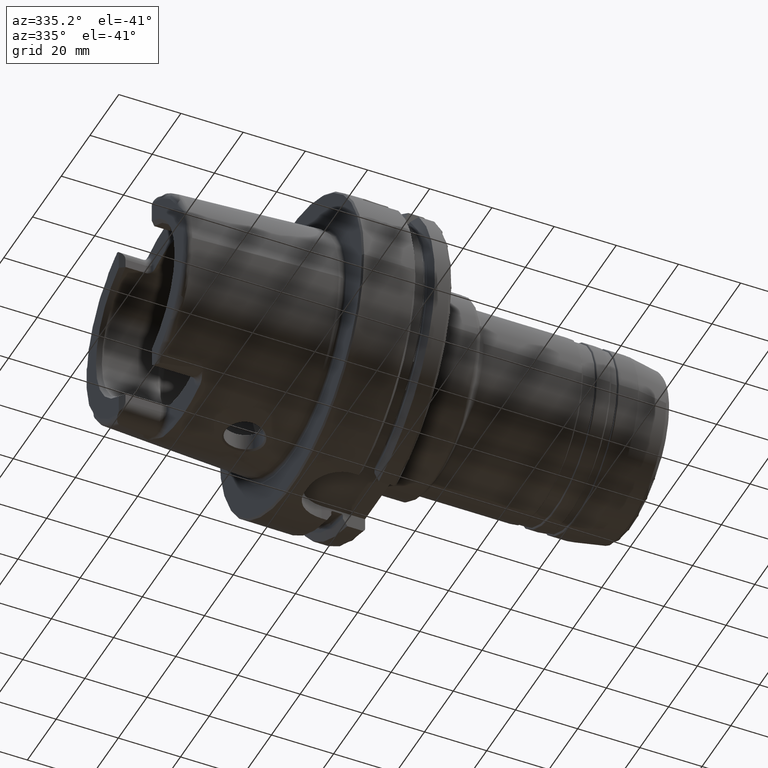
[diagram: clean part render]
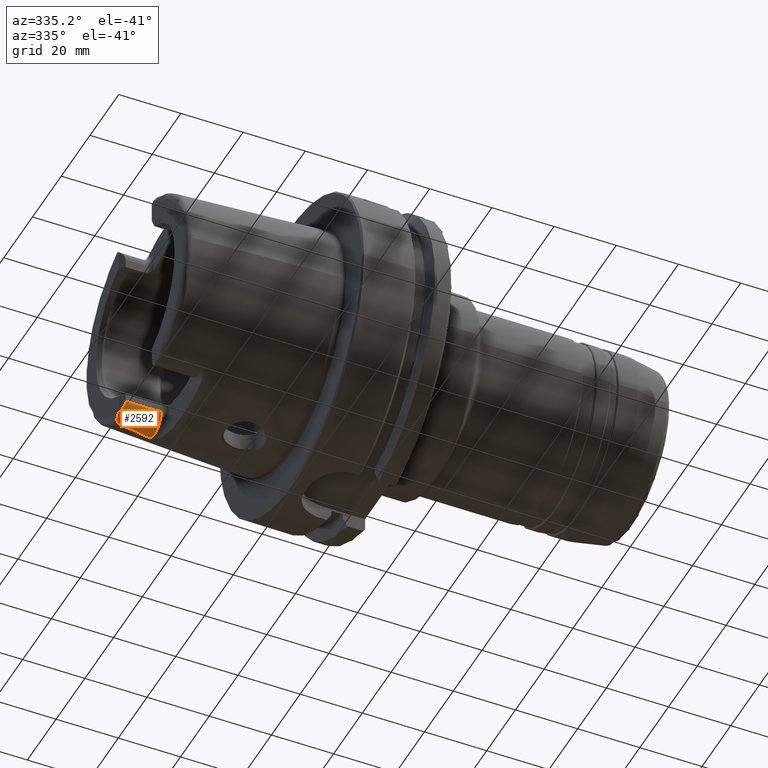
[diagram: same view with one face highlighted and labeled with its STEP entity id]
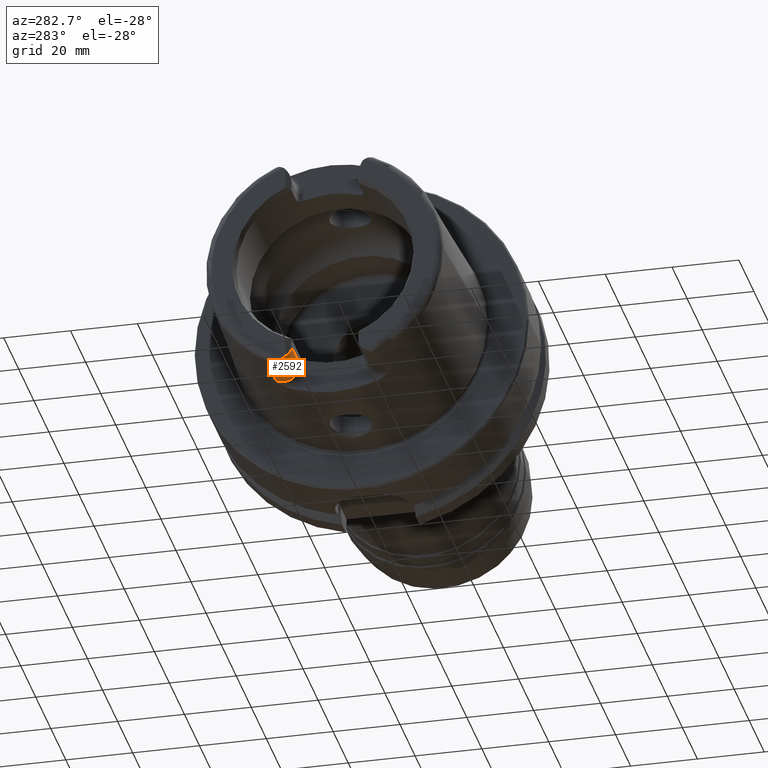
[diagram: same view with one face highlighted and labeled with its STEP entity id]
A machine part, auxiliary view. The second image highlights one B-rep face of the part: STEP entity #2592.
A second angle (auxiliary view) of the same face is appended — the face is thin or edge-on in the first view.
In plain terms, the highlighted cylindrical surface (edge-blend (fillet) strip) has radius 4.88 mm, axis along (-1, 0, 0).
Its self-contained STEP definition (entity closure, byte-faithful):
#31=B_SPLINE_CURVE_WITH_KNOTS('',3,(#4247,#4248,#4249,#4250,#4251,#4252,
#4253,#4254,#4255,#4256,#4257,#4258),.UNSPECIFIED.,.F.,.F.,(4,2,2,2,2,4),
(-0.744485085130371,-0.701284148098642,-0.656581713087942,-0.531183195108755,
-0.406814905045421,-0.32076786300396),.UNSPECIFIED.);
#32=B_SPLINE_CURVE_WITH_KNOTS('',3,(#4260,#4261,#4262,#4263,#4264,#4265,
#4266,#4267,#4268,#4269,#4270,#4271,#4272,#4273,#4274,#4275,#4276,#4277),
 .UNSPECIFIED.,.F.,.F.,(4,2,2,2,2,2,2,2,4),(1.82139636410114,1.83165892733975,
1.84192149057836,1.86244661705558,1.93660019990987,2.01075378276416,2.21475865094393,
2.41876351912369,2.7012608097453),.UNSPECIFIED.);
#85=ELLIPSE('',#2855,6.90136218438071,4.88);
#103=CYLINDRICAL_SURFACE('',#2858,4.88);
#209=LINE('',#4239,#324);
#212=LINE('',#4279,#327);
#324=VECTOR('',#3409,10.);
#327=VECTOR('',#3416,10.);
#468=FACE_OUTER_BOUND('',#608,.T.);
#608=EDGE_LOOP('',(#1931,#1932,#1933,#1934,#1935,#1936,#1937,#1938));
#823=CIRCLE('',#2859,4.88);
#824=CIRCLE('',#2860,4.88);
#825=CIRCLE('',#2861,4.88);
#1052=VERTEX_POINT('',#4229);
#1053=VERTEX_POINT('',#4230);
#1056=VERTEX_POINT('',#4238);
#1058=VERTEX_POINT('',#4244);
#1059=VERTEX_POINT('',#4246);
#1060=VERTEX_POINT('',#4259);
#1061=VERTEX_POINT('',#4278);
#1062=VERTEX_POINT('',#4280);
#1378=EDGE_CURVE('',#1052,#1053,#85,.T.);
#1382=EDGE_CURVE('',#1056,#1053,#209,.T.);
#1385=EDGE_CURVE('',#1058,#1052,#823,.T.);
#1386=EDGE_CURVE('',#1059,#1058,#31,.T.);
#1387=EDGE_CURVE('',#1060,#1059,#32,.T.);
#1388=EDGE_CURVE('',#1061,#1060,#212,.T.);
#1389=EDGE_CURVE('',#1062,#1061,#824,.T.);
#1390=EDGE_CURVE('',#1056,#1062,#825,.T.);
#1931=ORIENTED_EDGE('',*,*,#1378,.F.);
#1932=ORIENTED_EDGE('',*,*,#1385,.F.);
#1933=ORIENTED_EDGE('',*,*,#1386,.F.);
#1934=ORIENTED_EDGE('',*,*,#1387,.F.);
#1935=ORIENTED_EDGE('',*,*,#1388,.F.);
#1936=ORIENTED_EDGE('',*,*,#1389,.F.);
#1937=ORIENTED_EDGE('',*,*,#1390,.F.);
#1938=ORIENTED_EDGE('',*,*,#1382,.T.);
#2592=ADVANCED_FACE('',(#468),#103,.T.);
#2855=AXIS2_PLACEMENT_3D('',#4231,#3401,#3402);
#2858=AXIS2_PLACEMENT_3D('',#4243,#3412,#3413);
#2859=AXIS2_PLACEMENT_3D('',#4245,#3414,#3415);
#2860=AXIS2_PLACEMENT_3D('',#4281,#3417,#3418);
#2861=AXIS2_PLACEMENT_3D('',#4282,#3419,#3420);
#3401=DIRECTION('center_axis',(-0.707106781186547,-0.707106781186548,0.));
#3402=DIRECTION('ref_axis',(0.707106781186548,-0.707106781186547,1.20652596722626E-16));
#3409=DIRECTION('',(-1.,0.,0.));
#3412=DIRECTION('center_axis',(-1.,0.,0.));
#3413=DIRECTION('ref_axis',(0.,-0.477884921181368,0.878422450821629));
#3414=DIRECTION('center_axis',(-1.,0.,0.));
#3415=DIRECTION('ref_axis',(0.,-0.477884921181368,0.878422450821629));
#3416=DIRECTION('',(-1.,0.,0.));
#3417=DIRECTION('center_axis',(1.,0.,0.));
#3418=DIRECTION('ref_axis',(0.,0.477884921181368,-0.878422450821629));
#3419=DIRECTION('center_axis',(1.,0.,0.));
#3420=DIRECTION('ref_axis',(0.,-0.510937901715381,-0.8596176246394));
#4229=CARTESIAN_POINT('',(-50.,11.51,-30.8899431813596));
#4230=CARTESIAN_POINT('',(-48.5,10.01,-27.37));
#4231=CARTESIAN_POINT('Origin',(-53.38,14.89,-27.37));
#4238=CARTESIAN_POINT('',(-37.,10.01,-27.37));
#4239=CARTESIAN_POINT('',(-35.,10.01,-27.37));
#4243=CARTESIAN_POINT('Origin',(-35.,14.89,-27.37));
#4244=CARTESIAN_POINT('',(-50.,12.0743049948301,-31.355757348091));
#4245=CARTESIAN_POINT('Origin',(-50.,14.89,-27.37));
#4246=CARTESIAN_POINT('',(-48.1000748840304,15.0787152148571,-32.2463497175327));
#4247=CARTESIAN_POINT('Ctrl Pts',(-48.1000748840304,15.0787152148571,-32.2463497175327));
#4248=CARTESIAN_POINT('Ctrl Pts',(-48.2105289331959,15.0644723890649,-32.2469009162952));
#4249=CARTESIAN_POINT('Ctrl Pts',(-48.3152849211513,15.0274043790922,-32.2483365520296));
#4250=CARTESIAN_POINT('Ctrl Pts',(-48.5158350355592,14.9227249886344,-32.2501807122049));
#4251=CARTESIAN_POINT('Ctrl Pts',(-48.6114759122292,14.8539486337751,-32.2504380099703));
#4252=CARTESIAN_POINT('Ctrl Pts',(-48.9444340259589,14.5699075364914,-32.2439932048825));
#4253=CARTESIAN_POINT('Ctrl Pts',(-49.1873237794489,14.2618237213855,-32.2229124522755));
#4254=CARTESIAN_POINT('Ctrl Pts',(-49.6096022065355,13.5557805634606,-32.0777680620402));
#4255=CARTESIAN_POINT('Ctrl Pts',(-49.7790094341757,13.1775605707035,-31.9575317726829));
#4256=CARTESIAN_POINT('Ctrl Pts',(-49.9573633441756,12.558596693048,-31.6661869684752));
#4257=CARTESIAN_POINT('Ctrl Pts',(-50.,12.3094122367882,-31.5218463066117));
#4258=CARTESIAN_POINT('Ctrl Pts',(-50.,12.0743049948301,-31.355757348091));
#4259=CARTESIAN_POINT('',(-39.3086860506441,17.2220784153651,-31.6567015600095));
#4260=CARTESIAN_POINT('Ctrl Pts',(-39.3086860506439,17.2220784153651,-31.6567015600096));
#4261=CARTESIAN_POINT('Ctrl Pts',(-39.3086860506439,17.1920288621925,-31.6730493074242));
#4262=CARTESIAN_POINT('Ctrl Pts',(-39.3149778656361,17.1622985367362,-31.6888083298259));
#4263=CARTESIAN_POINT('Ctrl Pts',(-39.3379356243704,17.1047575471073,-31.7185977246152));
#4264=CARTESIAN_POINT('Ctrl Pts',(-39.3545931085757,17.0769444761517,-31.7326299669));
#4265=CARTESIAN_POINT('Ctrl Pts',(-39.41492287308,16.9977687004959,-31.7717242618145));
#4266=CARTESIAN_POINT('Ctrl Pts',(-39.4690330405114,16.9505386197656,-31.7938497879436));
#4267=CARTESIAN_POINT('Ctrl Pts',(-39.7137538085318,16.7691556019457,-31.8763882092881));
#4268=CARTESIAN_POINT('Ctrl Pts',(-39.9557031082111,16.6668123685081,-31.9161154581445));
#4269=CARTESIAN_POINT('Ctrl Pts',(-40.4538120390228,16.4807891402054,-31.9844991546727));
#4270=CARTESIAN_POINT('Ctrl Pts',(-40.7121103138056,16.4018770942044,-32.0104206666339));
#4271=CARTESIAN_POINT('Ctrl Pts',(-41.6015350915672,16.1516844838416,-32.0879931345296));
#4272=CARTESIAN_POINT('Ctrl Pts',(-42.2774968259687,16.0065639510366,-32.1225120780024));
#4273=CARTESIAN_POINT('Ctrl Pts',(-43.6583569770469,15.7387900082285,-32.1775602969968));
#4274=CARTESIAN_POINT('Ctrl Pts',(-44.3638273319757,15.6187903492069,-32.19660809961));
#4275=CARTESIAN_POINT('Ctrl Pts',(-46.0708874643597,15.3507400024476,-32.2307282620297));
#4276=CARTESIAN_POINT('Ctrl Pts',(-47.0815953489825,15.2100460868363,-32.2412671998384));
#4277=CARTESIAN_POINT('Ctrl Pts',(-48.1000748840303,15.0787152148571,-32.2463497175327));
#4278=CARTESIAN_POINT('',(-37.,17.2220784153651,-31.6567015600095));
#4279=CARTESIAN_POINT('',(-35.,17.2220784153651,-31.6567015600095));
#4280=CARTESIAN_POINT('',(-37.,13.4017880550143,-32.0175396939458));
#4281=CARTESIAN_POINT('Origin',(-37.,14.89,-27.37));
#4282=CARTESIAN_POINT('Origin',(-37.,14.89,-27.37));